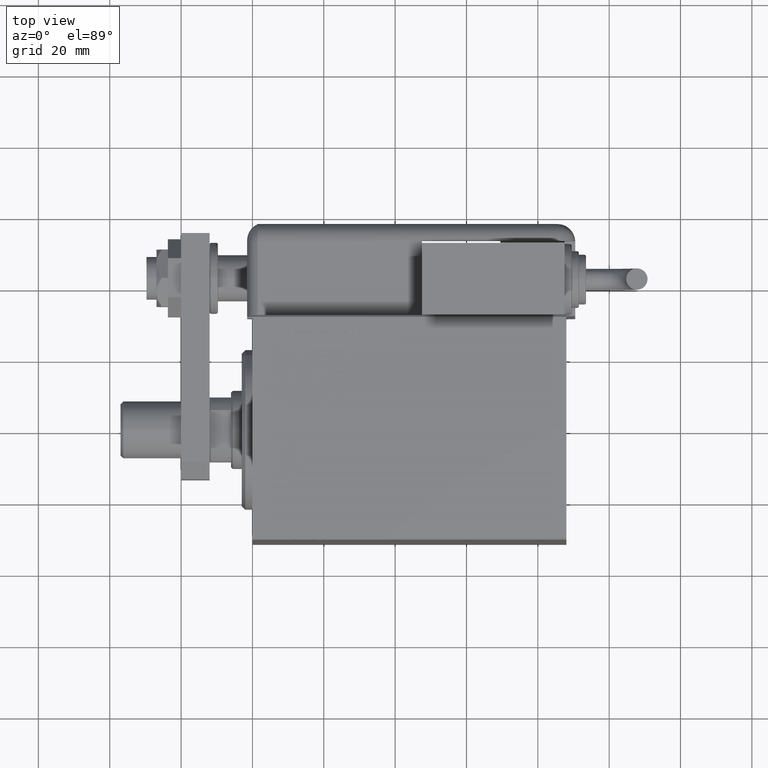
[diagram: clean part render]
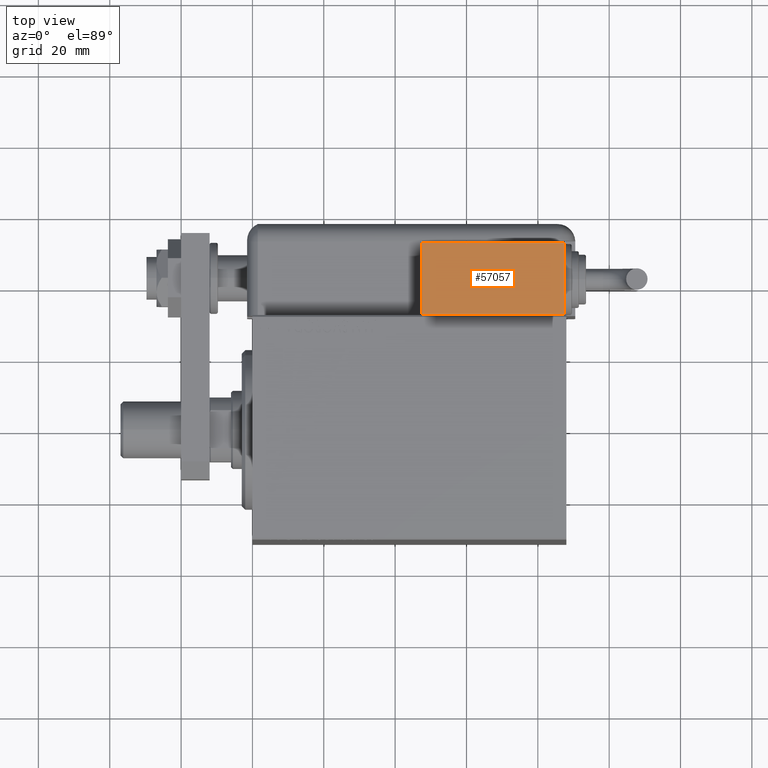
[diagram: same view with one face highlighted and labeled with its STEP entity id]
A machine part, top view. The second image highlights one B-rep face of the part: STEP entity #57057.
In plain terms, the highlighted planar face has unit normal (-0, -0, -1).
Its self-contained STEP definition (entity closure, byte-faithful):
#6322 = CARTESIAN_POINT ( 'NONE',  ( 20.00000000000005329, -17.49999999999996092, -9.999999999999998224 ) ) ;
#6857 = DIRECTION ( 'NONE',  ( 1.000000000000000000, 0.000000000000000000, 0.000000000000000000 ) ) ;
#8022 = CARTESIAN_POINT ( 'NONE',  ( 0.000000000000000000, -17.49999999999996092, 0.000000000000000000 ) ) ;
#8318 = DIRECTION ( 'NONE',  ( 0.000000000000000000, -0.000000000000000000, 1.000000000000000000 ) ) ;
#11582 = LINE ( 'NONE', #12485, #51572 ) ;
#12240 = ORIENTED_EDGE ( 'NONE', *, *, #37558, .T. ) ;
#12485 = CARTESIAN_POINT ( 'NONE',  ( 20.00000000000005329, -17.49999999999996092, -9.999999999999998224 ) ) ;
#13220 = DIRECTION ( 'NONE',  ( -1.000000000000000000, -0.000000000000000000, -0.000000000000000000 ) ) ;
#13448 = PLANE ( 'NONE',  #41167 ) ;
#15965 = DIRECTION ( 'NONE',  ( -0.000000000000000000, -0.000000000000000000, -1.000000000000000000 ) ) ;
#17400 = DIRECTION ( 'NONE',  ( 0.000000000000000000, 1.000000000000000000, 0.000000000000000000 ) ) ;
#17763 = LINE ( 'NONE', #36267, #20654 ) ;
#20211 = LINE ( 'NONE', #38711, #43986 ) ;
#20654 = VECTOR ( 'NONE', #13220, 1000.000000000000000 ) ;
#24011 = VERTEX_POINT ( 'NONE', #41664 ) ;
#29452 = EDGE_CURVE ( 'NONE', #54100, #24011, #11582, .T. ) ;
#31608 = EDGE_LOOP ( 'NONE', ( #38344, #32391, #12240, #56790 ) ) ;
#32391 = ORIENTED_EDGE ( 'NONE', *, *, #51986, .T. ) ;
#35234 = DIRECTION ( 'NONE',  ( 0.000000000000000000, 0.000000000000000000, 1.000000000000000000 ) ) ;
#36083 = VERTEX_POINT ( 'NONE', #40010 ) ;
#36267 = CARTESIAN_POINT ( 'NONE',  ( -19.99999999999994316, -17.49999999999996092, 10.00000000000000000 ) ) ;
#36566 = CARTESIAN_POINT ( 'NONE',  ( -19.99999999999994316, -17.49999999999996092, 10.00000000000000000 ) ) ;
#37558 = EDGE_CURVE ( 'NONE', #56713, #36083, #20211, .T. ) ;
#38344 = ORIENTED_EDGE ( 'NONE', *, *, #29452, .T. ) ;
#38711 = CARTESIAN_POINT ( 'NONE',  ( -19.99999999999994316, -17.49999999999996092, -9.999999999999998224 ) ) ;
#40010 = CARTESIAN_POINT ( 'NONE',  ( -19.99999999999994316, -17.49999999999996092, -9.999999999999998224 ) ) ;
#41167 = AXIS2_PLACEMENT_3D ( 'NONE', #8022, #17400, #8318 ) ;
#41664 = CARTESIAN_POINT ( 'NONE',  ( 20.00000000000005329, -17.49999999999996092, 10.00000000000000000 ) ) ;
#43986 = VECTOR ( 'NONE', #15965, 1000.000000000000000 ) ;
#44117 = LINE ( 'NONE', #48374, #45770 ) ;
#45770 = VECTOR ( 'NONE', #6857, 1000.000000000000000 ) ;
#48374 = CARTESIAN_POINT ( 'NONE',  ( -19.99999999999994316, -17.49999999999996092, -9.999999999999998224 ) ) ;
#50922 = EDGE_CURVE ( 'NONE', #36083, #54100, #44117, .T. ) ;
#51572 = VECTOR ( 'NONE', #35234, 1000.000000000000000 ) ;
#51986 = EDGE_CURVE ( 'NONE', #24011, #56713, #17763, .T. ) ;
#54100 = VERTEX_POINT ( 'NONE', #6322 ) ;
#55016 = FACE_OUTER_BOUND ( 'NONE', #31608, .T. ) ;
#56713 = VERTEX_POINT ( 'NONE', #36566 ) ;
#56790 = ORIENTED_EDGE ( 'NONE', *, *, #50922, .T. ) ;
#57057 = ADVANCED_FACE ( 'NONE', ( #55016 ), #13448, .F. ) ;